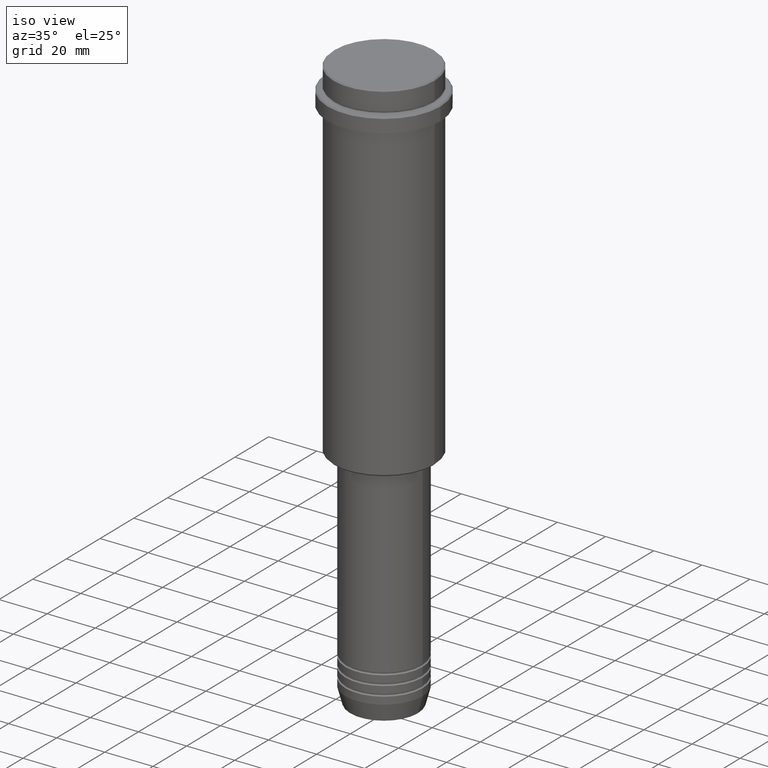
[diagram: clean part render]
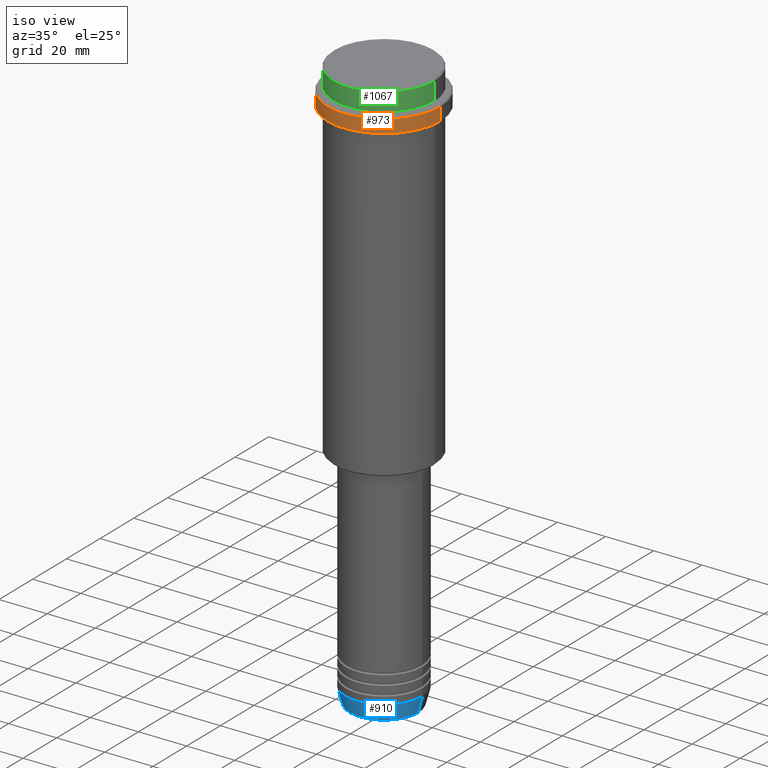
[diagram: same view with three faces highlighted in distinct colors, each labeled with its STEP entity id]
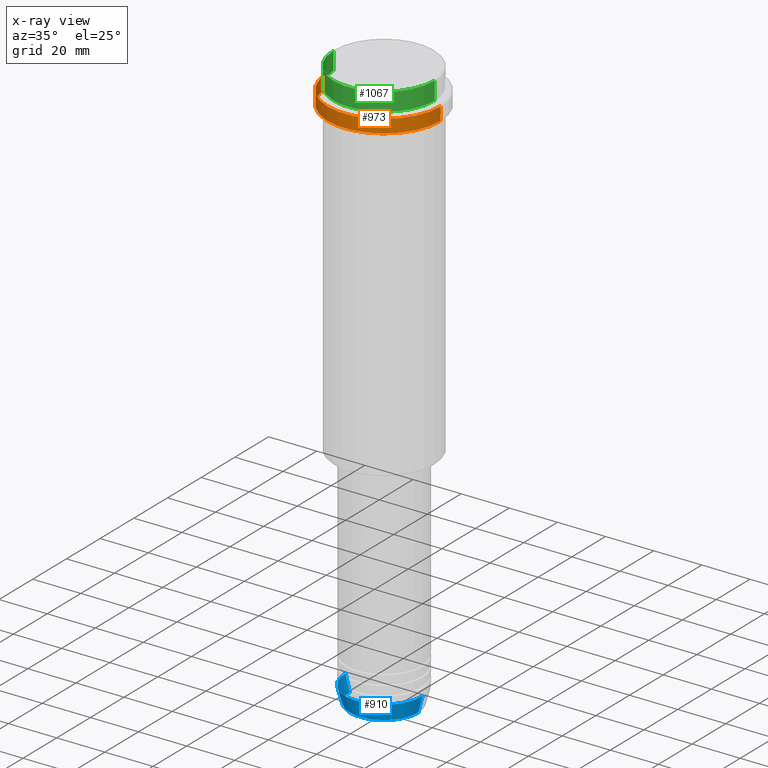
[diagram: x-ray of the same camera — body ghosted, the three highlighted faces saturated]
A machine part, iso view with three faces highlighted in distinct colors.
The next image is the same camera in x-ray (body ghosted, the three faces saturated) — at least one of them is partly hidden behind the body in this view.
Their STEP definitions:

[orange] entity #973 — the highlighted cylindrical surface (partial cylindrical patch) has radius 23.5 mm, axis along (-0, -0, 1).
#56 = VERTEX_POINT ( 'NONE', #256 ) ;
#61 = VERTEX_POINT ( 'NONE', #682 ) ;
#79 = DIRECTION ( 'NONE',  ( -0.000000000000000000, -0.000000000000000000, 1.000000000000000000 ) ) ;
#224 = CARTESIAN_POINT ( 'NONE',  ( -23.50000000000000711, 2.877919977996281109E-15, -15.00000000000000000 ) ) ;
#256 = CARTESIAN_POINT ( 'NONE',  ( -23.50000000000000000, 2.877919977996280320E-15, -9.500000000000000000 ) ) ;
#266 = DIRECTION ( 'NONE',  ( -0.000000000000000000, -0.000000000000000000, 1.000000000000000000 ) ) ;
#330 = EDGE_LOOP ( 'NONE', ( #1256, #960, #434, #948 ) ) ;
#331 = CARTESIAN_POINT ( 'NONE',  ( 23.50000000000000000, 0.000000000000000000, -9.500000000000000000 ) ) ;
#366 = LINE ( 'NONE', #798, #1314 ) ;
#430 = DIRECTION ( 'NONE',  ( -0.000000000000000000, -0.000000000000000000, 1.000000000000000000 ) ) ;
#434 = ORIENTED_EDGE ( 'NONE', *, *, #1401, .T. ) ;
#514 = DIRECTION ( 'NONE',  ( 1.000000000000000000, 0.000000000000000000, 0.000000000000000000 ) ) ;
#543 = DIRECTION ( 'NONE',  ( -0.000000000000000000, -0.000000000000000000, 1.000000000000000000 ) ) ;
#576 = AXIS2_PLACEMENT_3D ( 'NONE', #842, #79, #1155 ) ;
#601 = CIRCLE ( 'NONE', #832, 23.50000000000000000 ) ;
#623 = DIRECTION ( 'NONE',  ( 0.000000000000000000, 0.000000000000000000, -1.000000000000000000 ) ) ;
#682 = CARTESIAN_POINT ( 'NONE',  ( 23.50000000000000355, 0.000000000000000000, -15.00000000000000000 ) ) ;
#773 = EDGE_CURVE ( 'NONE', #898, #61, #966, .T. ) ;
#792 = AXIS2_PLACEMENT_3D ( 'NONE', #1208, #543, #970 ) ;
#798 = CARTESIAN_POINT ( 'NONE',  ( -23.50000000000000000, 2.877919977996280320E-15, 0.000000000000000000 ) ) ;
#832 = AXIS2_PLACEMENT_3D ( 'NONE', #1051, #623, #514 ) ;
#842 = CARTESIAN_POINT ( 'NONE',  ( 0.000000000000000000, 0.000000000000000000, -15.00000000000000000 ) ) ;
#876 = FACE_OUTER_BOUND ( 'NONE', #330, .T. ) ;
#898 = VERTEX_POINT ( 'NONE', #224 ) ;
#948 = ORIENTED_EDGE ( 'NONE', *, *, #1162, .T. ) ;
#960 = ORIENTED_EDGE ( 'NONE', *, *, #773, .T. ) ;
#966 = CIRCLE ( 'NONE', #576, 23.50000000000000355 ) ;
#970 = DIRECTION ( 'NONE',  ( 1.000000000000000000, 0.000000000000000000, 0.000000000000000000 ) ) ;
#973 = ADVANCED_FACE ( 'NONE', ( #876 ), #1316, .T. ) ;
#986 = CARTESIAN_POINT ( 'NONE',  ( 23.50000000000000000, 0.000000000000000000, 0.000000000000000000 ) ) ;
#1005 = VERTEX_POINT ( 'NONE', #331 ) ;
#1051 = CARTESIAN_POINT ( 'NONE',  ( 0.000000000000000000, 0.000000000000000000, -9.500000000000000000 ) ) ;
#1107 = EDGE_CURVE ( 'NONE', #898, #56, #366, .T. ) ;
#1155 = DIRECTION ( 'NONE',  ( 1.000000000000000000, 0.000000000000000000, 0.000000000000000000 ) ) ;
#1162 = EDGE_CURVE ( 'NONE', #1005, #56, #601, .T. ) ;
#1208 = CARTESIAN_POINT ( 'NONE',  ( 0.000000000000000000, 0.000000000000000000, 0.000000000000000000 ) ) ;
#1256 = ORIENTED_EDGE ( 'NONE', *, *, #1107, .F. ) ;
#1314 = VECTOR ( 'NONE', #266, 1000.000000000000000 ) ;
#1316 = CYLINDRICAL_SURFACE ( 'NONE', #792, 23.50000000000000000 ) ;
#1401 = EDGE_CURVE ( 'NONE', #61, #1005, #1416, .T. ) ;
#1414 = VECTOR ( 'NONE', #430, 1000.000000000000000 ) ;
#1416 = LINE ( 'NONE', #986, #1414 ) ;

[blue] entity #910 — the highlighted conical surface has half-angle 15 deg.
#8 = CIRCLE ( 'NONE', #1186, 14.22365507213718772 ) ;
#13 = DIRECTION ( 'NONE',  ( -0.000000000000000000, -0.000000000000000000, 1.000000000000000000 ) ) ;
#74 = CARTESIAN_POINT ( 'NONE',  ( 0.000000000000000000, 0.000000000000000000, -239.6294095225512706 ) ) ;
#118 = EDGE_CURVE ( 'NONE', #1226, #1196, #8, .T. ) ;
#176 = EDGE_CURVE ( 'NONE', #1226, #302, #387, .T. ) ;
#243 = VECTOR ( 'NONE', #915, 1000.000000000000000 ) ;
#294 = CIRCLE ( 'NONE', #537, 16.00000000000000000 ) ;
#302 = VERTEX_POINT ( 'NONE', #721 ) ;
#387 = LINE ( 'NONE', #1158, #1021 ) ;
#389 = LINE ( 'NONE', #679, #243 ) ;
#391 = ORIENTED_EDGE ( 'NONE', *, *, #176, .F. ) ;
#393 = DIRECTION ( 'NONE',  ( -0.2588190451025213501, 3.169619151431772337E-17, 0.9659258262890680902 ) ) ;
#489 = DIRECTION ( 'NONE',  ( -0.000000000000000000, -0.000000000000000000, 1.000000000000000000 ) ) ;
#537 = AXIS2_PLACEMENT_3D ( 'NONE', #972, #558, #787 ) ;
#550 = ORIENTED_EDGE ( 'NONE', *, *, #118, .T. ) ;
#558 = DIRECTION ( 'NONE',  ( -0.000000000000000000, -0.000000000000000000, 1.000000000000000000 ) ) ;
#584 = EDGE_CURVE ( 'NONE', #302, #969, #294, .T. ) ;
#595 = CARTESIAN_POINT ( 'NONE',  ( 14.22365507213718772, 0.000000000000000000, -239.6294095225512706 ) ) ;
#649 = CONICAL_SURFACE ( 'NONE', #694, 16.00000000000000000, 0.2617993877991500740 ) ;
#656 = ORIENTED_EDGE ( 'NONE', *, *, #584, .F. ) ;
#676 = EDGE_CURVE ( 'NONE', #1196, #969, #389, .T. ) ;
#679 = CARTESIAN_POINT ( 'NONE',  ( 16.00000000000000000, 0.000000000000000000, -233.0000000000000000 ) ) ;
#694 = AXIS2_PLACEMENT_3D ( 'NONE', #961, #13, #989 ) ;
#721 = CARTESIAN_POINT ( 'NONE',  ( -16.00000000000000000, 1.959434878635765131E-15, -233.0000000000000000 ) ) ;
#787 = DIRECTION ( 'NONE',  ( 1.000000000000000000, 0.000000000000000000, 0.000000000000000000 ) ) ;
#825 = CARTESIAN_POINT ( 'NONE',  ( -14.22365507213718772, 1.850665122131323337E-15, -239.6294095225512706 ) ) ;
#910 = ADVANCED_FACE ( 'NONE', ( #1301 ), #649, .T. ) ;
#912 = DIRECTION ( 'NONE',  ( 1.000000000000000000, 0.000000000000000000, 0.000000000000000000 ) ) ;
#915 = DIRECTION ( 'NONE',  ( 0.2588190451025213501, 0.000000000000000000, 0.9659258262890680902 ) ) ;
#961 = CARTESIAN_POINT ( 'NONE',  ( 0.000000000000000000, 0.000000000000000000, -233.0000000000000000 ) ) ;
#969 = VERTEX_POINT ( 'NONE', #982 ) ;
#972 = CARTESIAN_POINT ( 'NONE',  ( 0.000000000000000000, 0.000000000000000000, -233.0000000000000000 ) ) ;
#982 = CARTESIAN_POINT ( 'NONE',  ( 16.00000000000000000, 0.000000000000000000, -233.0000000000000000 ) ) ;
#989 = DIRECTION ( 'NONE',  ( 1.000000000000000000, 0.000000000000000000, 0.000000000000000000 ) ) ;
#1021 = VECTOR ( 'NONE', #393, 1000.000000000000000 ) ;
#1078 = EDGE_LOOP ( 'NONE', ( #391, #550, #1275, #656 ) ) ;
#1158 = CARTESIAN_POINT ( 'NONE',  ( -16.00000000000000000, 1.959434878635765131E-15, -233.0000000000000000 ) ) ;
#1186 = AXIS2_PLACEMENT_3D ( 'NONE', #74, #489, #912 ) ;
#1196 = VERTEX_POINT ( 'NONE', #595 ) ;
#1226 = VERTEX_POINT ( 'NONE', #825 ) ;
#1275 = ORIENTED_EDGE ( 'NONE', *, *, #676, .T. ) ;
#1301 = FACE_OUTER_BOUND ( 'NONE', #1078, .T. ) ;

[green] entity #1067 — the highlighted cylindrical surface (partial cylindrical patch) has radius 21 mm, axis along (-0, -0, 1).
#12 = ORIENTED_EDGE ( 'NONE', *, *, #566, .T. ) ;
#14 = ORIENTED_EDGE ( 'NONE', *, *, #20, .F. ) ;
#20 = EDGE_CURVE ( 'NONE', #170, #836, #1331, .T. ) ;
#161 = ORIENTED_EDGE ( 'NONE', *, *, #670, .T. ) ;
#170 = VERTEX_POINT ( 'NONE', #406 ) ;
#171 = CARTESIAN_POINT ( 'NONE',  ( 0.000000000000000000, 0.000000000000000000, -7.999999999999998224 ) ) ;
#196 = AXIS2_PLACEMENT_3D ( 'NONE', #171, #1224, #277 ) ;
#228 = DIRECTION ( 'NONE',  ( 1.000000000000000000, 0.000000000000000000, 0.000000000000000000 ) ) ;
#230 = VERTEX_POINT ( 'NONE', #448 ) ;
#244 = DIRECTION ( 'NONE',  ( -0.000000000000000000, -0.000000000000000000, 1.000000000000000000 ) ) ;
#251 = CARTESIAN_POINT ( 'NONE',  ( -21.00000000000000000, 2.571758278209441661E-15, 0.000000000000000000 ) ) ;
#257 = EDGE_CURVE ( 'NONE', #1180, #836, #785, .T. ) ;
#277 = DIRECTION ( 'NONE',  ( 1.000000000000000000, 0.000000000000000000, 0.000000000000000000 ) ) ;
#292 = ORIENTED_EDGE ( 'NONE', *, *, #257, .T. ) ;
#308 = CARTESIAN_POINT ( 'NONE',  ( 21.00000000000000000, 0.000000000000000000, -0.5000000000000108802 ) ) ;
#328 = CARTESIAN_POINT ( 'NONE',  ( 0.000000000000000000, 0.000000000000000000, -0.5000000000000108802 ) ) ;
#380 = CYLINDRICAL_SURFACE ( 'NONE', #990, 21.00000000000000000 ) ;
#406 = CARTESIAN_POINT ( 'NONE',  ( -21.00000000000000000, 2.571758278209441661E-15, -7.999999999999998224 ) ) ;
#447 = CIRCLE ( 'NONE', #196, 21.00000000000000000 ) ;
#448 = CARTESIAN_POINT ( 'NONE',  ( 21.00000000000000000, 0.000000000000000000, -7.999999999999998224 ) ) ;
#476 = FACE_OUTER_BOUND ( 'NONE', #715, .T. ) ;
#484 = VECTOR ( 'NONE', #244, 1000.000000000000000 ) ;
#532 = CARTESIAN_POINT ( 'NONE',  ( -21.00000000000000000, 2.571758278209441661E-15, -0.5000000000000108802 ) ) ;
#564 = CARTESIAN_POINT ( 'NONE',  ( 0.000000000000000000, 0.000000000000000000, 0.000000000000000000 ) ) ;
#566 = EDGE_CURVE ( 'NONE', #230, #1180, #1322, .T. ) ;
#670 = EDGE_CURVE ( 'NONE', #170, #230, #447, .T. ) ;
#715 = EDGE_LOOP ( 'NONE', ( #14, #161, #12, #292 ) ) ;
#741 = AXIS2_PLACEMENT_3D ( 'NONE', #328, #771, #228 ) ;
#761 = CARTESIAN_POINT ( 'NONE',  ( 21.00000000000000000, 0.000000000000000000, 0.000000000000000000 ) ) ;
#771 = DIRECTION ( 'NONE',  ( 0.000000000000000000, 0.000000000000000000, -1.000000000000000000 ) ) ;
#785 = CIRCLE ( 'NONE', #741, 21.00000000000000000 ) ;
#811 = DIRECTION ( 'NONE',  ( -0.000000000000000000, -0.000000000000000000, 1.000000000000000000 ) ) ;
#836 = VERTEX_POINT ( 'NONE', #532 ) ;
#959 = VECTOR ( 'NONE', #1087, 1000.000000000000000 ) ;
#990 = AXIS2_PLACEMENT_3D ( 'NONE', #564, #811, #1325 ) ;
#1067 = ADVANCED_FACE ( 'NONE', ( #476 ), #380, .T. ) ;
#1087 = DIRECTION ( 'NONE',  ( -0.000000000000000000, -0.000000000000000000, 1.000000000000000000 ) ) ;
#1180 = VERTEX_POINT ( 'NONE', #308 ) ;
#1224 = DIRECTION ( 'NONE',  ( -0.000000000000000000, -0.000000000000000000, 1.000000000000000000 ) ) ;
#1322 = LINE ( 'NONE', #761, #959 ) ;
#1325 = DIRECTION ( 'NONE',  ( 1.000000000000000000, 0.000000000000000000, 0.000000000000000000 ) ) ;
#1331 = LINE ( 'NONE', #251, #484 ) ;